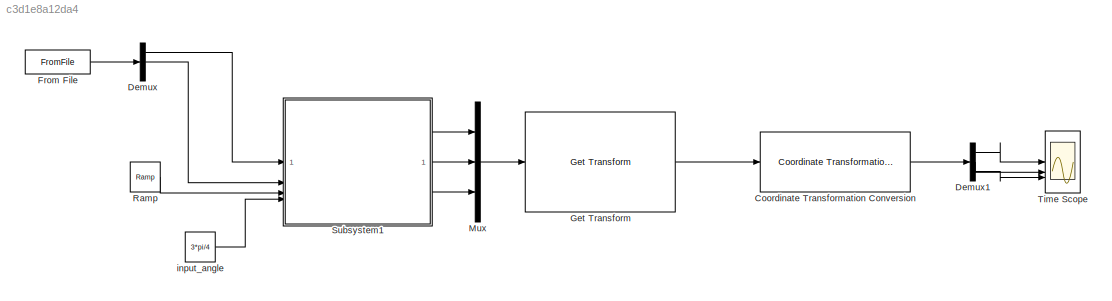
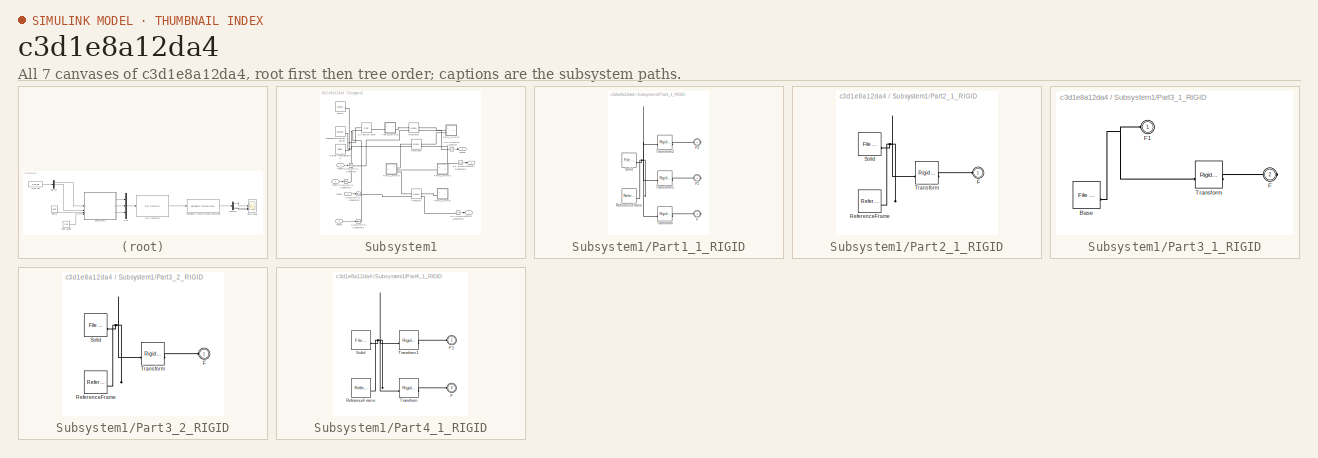
[diagram: thumbnail index - all 7 canvases of the model, root first then tree order]
MODEL slx_c3d1e8a12da4
KIND model
CONFIG AbsTol = auto
CONFIG EnableMultiTasking = off
CONFIG FixedStep = auto
CONFIG MaxStep = auto
CONFIG MinStep = auto
CONFIG RelTol = 1e-3
CONFIG SampleTimeConstraint = Unconstrained
CONFIG SolverName = VariableStepAuto
CONFIG StartTime = 0.0
CONFIG StopTime = 4
WORKSPACE source: external: MATLAB File  (data not in archive)
BLOCK [Reference] Coordinate Transformation Conversion  REF=robotcorelib/Coordinate Transformation Conversion
  LibrarySourceBlock = navlib/Utilities/Coordinate Transformation Conversion
  SourceBlock = robotcorelib/Coordinate Transformation Conversion
  SourceType = robotics.slcore.internal.block.CoordinateTransformationConversion
BLOCK [Demux] Demux
  Outputs = 3
BLOCK [Demux] Demux1
  Outputs = 3
BLOCK [FromFile] From File
  FileName = A.mat
  SampleTime = 0
BLOCK [Reference] Get Transform  REF=robotmaniplib/Get Transform
  SourceBlock = robotmaniplib/Get Transform
  SourceType = Get Transform
BLOCK [Mux] Mux
  DisplayOption = bar
  Inputs = 3
BLOCK [Reference] Ramp  REF=simulink/Sources/Ramp
  SourceBlock = simulink/Sources/Ramp
  SourceType = Ramp
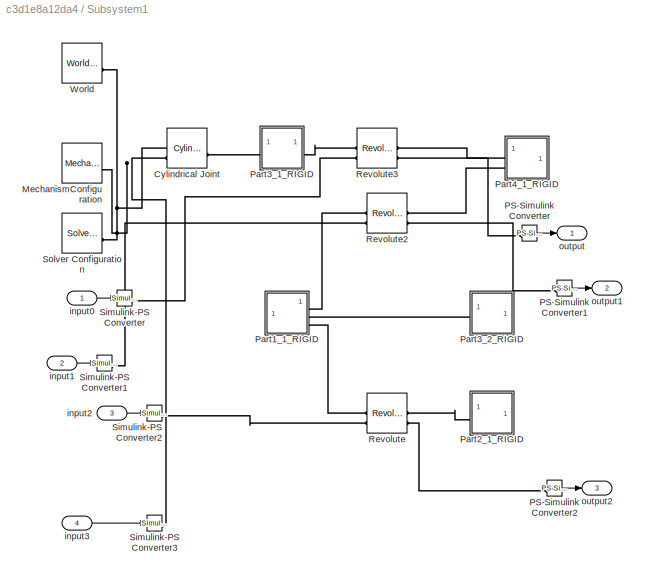
BLOCK [SubSystem] Subsystem1
BLOCK [Reference] Subsystem1/Cylindrical Joint  REF=sm_lib/Joints/Cylindrical
Joint
  SourceBlock = sm_lib/Joints/Cylindrical\nJoint
  SourceType = Cylindrical\nJoint
BLOCK [Reference] Subsystem1/MechanismConfiguration  REF=sm_lib/Utilities/Mechanism
Configuration
  SourceBlock = sm_lib/Utilities/Mechanism\nConfiguration
  SourceType = Mechanism\nConfiguration
BLOCK [Reference] Subsystem1/PS-Simulink Converter  REF=nesl_utility/PS-Simulink
Converter
  SourceBlock = nesl_utility/PS-Simulink\nConverter
  SourceType = PS-Simulink\nConverter
BLOCK [Reference] Subsystem1/PS-Simulink Converter1  REF=nesl_utility/PS-Simulink
Converter
  SourceBlock = nesl_utility/PS-Simulink\nConverter
  SourceType = PS-Simulink\nConverter
BLOCK [Reference] Subsystem1/PS-Simulink Converter2  REF=nesl_utility/PS-Simulink
Converter
  SourceBlock = nesl_utility/PS-Simulink\nConverter
  SourceType = PS-Simulink\nConverter
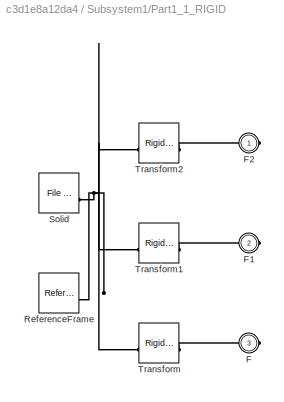
BLOCK [SubSystem] Subsystem1/Part1_1_RIGID
BLOCK [PMIOPort] Subsystem1/Part1_1_RIGID/F
  Port = 3
  Side = Right
BLOCK [PMIOPort] Subsystem1/Part1_1_RIGID/F1
  Port = 2
  Side = Right
BLOCK [PMIOPort] Subsystem1/Part1_1_RIGID/F2
  Side = Right
BLOCK [Reference] Subsystem1/Part1_1_RIGID/ReferenceFrame  REF=sm_lib/Frames and
Transforms/Reference
Frame
  SourceBlock = sm_lib/Frames and\nTransforms/Reference\nFrame
  SourceType = Reference\nFrame
BLOCK [Reference] Subsystem1/Part1_1_RIGID/Solid  REF=sm_lib/Body Elements/File Solid
  SourceBlock = sm_lib/Body Elements/File Solid
  SourceType = File Solid
BLOCK [Reference] Subsystem1/Part1_1_RIGID/Transform  REF=sm_lib/Frames and
Transforms/Rigid
Transform
  SourceBlock = sm_lib/Frames and\nTransforms/Rigid\nTransform
  SourceType = Rigid\nTransform
BLOCK [Reference] Subsystem1/Part1_1_RIGID/Transform1  REF=sm_lib/Frames and
Transforms/Rigid
Transform
  SourceBlock = sm_lib/Frames and\nTransforms/Rigid\nTransform
  SourceType = Rigid\nTransform
BLOCK [Reference] Subsystem1/Part1_1_RIGID/Transform2  REF=sm_lib/Frames and
Transforms/Rigid
Transform
  SourceBlock = sm_lib/Frames and\nTransforms/Rigid\nTransform
  SourceType = Rigid\nTransform
BLOCK [SubSystem] Subsystem1/Part2_1_RIGID
BLOCK [PMIOPort] Subsystem1/Part2_1_RIGID/F
  Side = Left
BLOCK [Reference] Subsystem1/Part2_1_RIGID/ReferenceFrame  REF=sm_lib/Frames and
Transforms/Reference
Frame
  SourceBlock = sm_lib/Frames and\nTransforms/Reference\nFrame
  SourceType = Reference\nFrame
BLOCK [Reference] Subsystem1/Part2_1_RIGID/Solid  REF=sm_lib/Body Elements/File Solid
  SourceBlock = sm_lib/Body Elements/File Solid
  SourceType = File Solid
BLOCK [Reference] Subsystem1/Part2_1_RIGID/Transform  REF=sm_lib/Frames and
Transforms/Rigid
Transform
  SourceBlock = sm_lib/Frames and\nTransforms/Rigid\nTransform
  SourceType = Rigid\nTransform
BLOCK [SubSystem] Subsystem1/Part3_1_RIGID
BLOCK [Reference] Subsystem1/Part3_1_RIGID/Base  REF=sm_lib/Body Elements/File Solid
  SourceBlock = sm_lib/Body Elements/File Solid
  SourceType = File Solid
BLOCK [PMIOPort] Subsystem1/Part3_1_RIGID/F
  Port = 2
  Side = Right
BLOCK [PMIOPort] Subsystem1/Part3_1_RIGID/F1
  Side = Left
BLOCK [Reference] Subsystem1/Part3_1_RIGID/Transform  REF=sm_lib/Frames and
Transforms/Rigid
Transform
  SourceBlock = sm_lib/Frames and\nTransforms/Rigid\nTransform
  SourceType = Rigid\nTransform
BLOCK [SubSystem] Subsystem1/Part3_2_RIGID
BLOCK [PMIOPort] Subsystem1/Part3_2_RIGID/F
  Side = Left
BLOCK [Reference] Subsystem1/Part3_2_RIGID/ReferenceFrame  REF=sm_lib/Frames and
Transforms/Reference
Frame
  SourceBlock = sm_lib/Frames and\nTransforms/Reference\nFrame
  SourceType = Reference\nFrame
BLOCK [Reference] Subsystem1/Part3_2_RIGID/Solid  REF=sm_lib/Body Elements/File Solid
  SourceBlock = sm_lib/Body Elements/File Solid
  SourceType = File Solid
BLOCK [Reference] Subsystem1/Part3_2_RIGID/Transform  REF=sm_lib/Frames and
Transforms/Rigid
Transform
  SourceBlock = sm_lib/Frames and\nTransforms/Rigid\nTransform
  SourceType = Rigid\nTransform
BLOCK [SubSystem] Subsystem1/Part4_1_RIGID
BLOCK [PMIOPort] Subsystem1/Part4_1_RIGID/F
  Port = 2
  Side = Left
BLOCK [PMIOPort] Subsystem1/Part4_1_RIGID/F1
  Side = Left
BLOCK [Reference] Subsystem1/Part4_1_RIGID/ReferenceFrame  REF=sm_lib/Frames and
Transforms/Reference
Frame
  SourceBlock = sm_lib/Frames and\nTransforms/Reference\nFrame
  SourceType = Reference\nFrame
BLOCK [Reference] Subsystem1/Part4_1_RIGID/Solid  REF=sm_lib/Body Elements/File Solid
  SourceBlock = sm_lib/Body Elements/File Solid
  SourceType = File Solid
BLOCK [Reference] Subsystem1/Part4_1_RIGID/Transform  REF=sm_lib/Frames and
Transforms/Rigid
Transform
  SourceBlock = sm_lib/Frames and\nTransforms/Rigid\nTransform
  SourceType = Rigid\nTransform
BLOCK [Reference] Subsystem1/Part4_1_RIGID/Transform1  REF=sm_lib/Frames and
Transforms/Rigid
Transform
  SourceBlock = sm_lib/Frames and\nTransforms/Rigid\nTransform
  SourceType = Rigid\nTransform
BLOCK [Reference] Subsystem1/Revolute  REF=sm_lib/Joints/Revolute Joint
  SourceBlock = sm_lib/Joints/Revolute Joint
  SourceType = Revolute Joint
BLOCK [Reference] Subsystem1/Revolute2  REF=sm_lib/Joints/Revolute Joint
  SourceBlock = sm_lib/Joints/Revolute Joint
  SourceType = Revolute Joint
BLOCK [Reference] Subsystem1/Revolute3  REF=sm_lib/Joints/Revolute Joint
  SourceBlock = sm_lib/Joints/Revolute Joint
  SourceType = Revolute Joint
BLOCK [Reference] Subsystem1/Simulink-PS Converter  REF=nesl_utility/Simulink-PS
Converter
  SourceBlock = nesl_utility/Simulink-PS\nConverter
  SourceType = Simulink-PS\nConverter
BLOCK [Reference] Subsystem1/Simulink-PS Converter1  REF=nesl_utility/Simulink-PS
Converter
  SourceBlock = nesl_utility/Simulink-PS\nConverter
  SourceType = Simulink-PS\nConverter
BLOCK [Reference] Subsystem1/Simulink-PS Converter2  REF=nesl_utility/Simulink-PS
Converter
  SourceBlock = nesl_utility/Simulink-PS\nConverter
  SourceType = Simulink-PS\nConverter
BLOCK [Reference] Subsystem1/Simulink-PS Converter3  REF=nesl_utility/Simulink-PS
Converter
  SourceBlock = nesl_utility/Simulink-PS\nConverter
  SourceType = Simulink-PS\nConverter
BLOCK [Reference] Subsystem1/Solver Configuration  REF=nesl_utility/Solver
Configuration
  SourceBlock = nesl_utility/Solver\nConfiguration
  SourceType = Solver\nConfiguration
BLOCK [Reference] Subsystem1/World  REF=sm_lib/Frames and
Transforms/World Frame
  SourceBlock = sm_lib/Frames and\nTransforms/World Frame
  SourceType = World Frame
BLOCK [Inport] Subsystem1/input0
BLOCK [Inport] Subsystem1/input1
  Port = 2
BLOCK [Inport] Subsystem1/input2
  Port = 3
BLOCK [Inport] Subsystem1/input3
  Port = 4
BLOCK [Outport] Subsystem1/output
BLOCK [Outport] Subsystem1/output1
  Port = 2
BLOCK [Outport] Subsystem1/output2
  Port = 3
BLOCK [Scope] Time Scope
  DefaultConfigurationName = spbscopes.TimeScopeBlockCfg
  Floating = off
  NumInputPorts = 3
  ScopeSpecificationString = spbscopes.TimeScopeBlockCfg('CurrentConfiguration', extmgr.ConfigurationSet(extmgr.Configuration('Core','General UI',true,'FigureColor',[0 0 0]),extmgr.Configuration('Core','Source UI',true),extmgr.Configuration('Sources','WiredSimulink',true),extmgr.Configuration('Visuals','Time Domain',true,'DisplayLayoutDimensions',[3 1],'DisplayPropertyDefaults',struct('YLabelReal','Amplitude','LegendVisibilit...<+2789ch>
  UserDataPersistent = on
BLOCK [Constant] input_angle
  Value = 3*pi/4
LINE Coordinate Transformation Conversion:1 -> Demux1:1
LINE Demux1:1 -> Time Scope:1
LINE Demux1:2 -> Time Scope:2
LINE Demux1:3 -> Time Scope:3
LINE Demux:1 -> Subsystem1:1
LINE Demux:2 -> Subsystem1:2
LINE From File:1 -> Demux:1
LINE Get Transform:1 -> Coordinate Transformation Conversion:1
LINE Mux:1 -> Get Transform:1
LINE Ramp:1 -> Subsystem1:3
LINE Subsystem1/PS-Simulink Converter1:1 -> Subsystem1/output1:1
LINE Subsystem1/PS-Simulink Converter2:1 -> Subsystem1/output2:1
LINE Subsystem1/PS-Simulink Converter:1 -> Subsystem1/output:1
LINE Subsystem1/input0:1 -> Subsystem1/Simulink-PS Converter:1
LINE Subsystem1/input1:1 -> Subsystem1/Simulink-PS Converter1:1
LINE Subsystem1/input2:1 -> Subsystem1/Simulink-PS Converter2:1
LINE Subsystem1/input3:1 -> Subsystem1/Simulink-PS Converter3:1
LINE Subsystem1:1 -> Mux:1
LINE Subsystem1:2 -> Mux:2
LINE Subsystem1:3 -> Mux:3
LINE input_angle:1 -> Subsystem1:4
PNET net1: Subsystem1/Cylindrical Joint:LConn1 -- Subsystem1/MechanismConfiguration:RConn1 -- Subsystem1/Solver Configuration:RConn1 -- Subsystem1/World:RConn1
PLINE Subsystem1/Cylindrical Joint:LConn2 -- Subsystem1/Simulink-PS Converter3:RConn1
PLINE Subsystem1/Cylindrical Joint:RConn1 -- Subsystem1/Part3_1_RIGID:LConn1
PLINE Subsystem1/PS-Simulink Converter1:LConn1 -- Subsystem1/Revolute2:RConn2
PLINE Subsystem1/PS-Simulink Converter2:LConn1 -- Subsystem1/Revolute:RConn2
PLINE Subsystem1/PS-Simulink Converter:LConn1 -- Subsystem1/Revolute3:RConn2
PLINE Subsystem1/Part1_1_RIGID/F1:RConn1 -- Subsystem1/Part1_1_RIGID/Transform1:RConn1
PLINE Subsystem1/Part1_1_RIGID/F2:RConn1 -- Subsystem1/Part1_1_RIGID/Transform2:RConn1
PLINE Subsystem1/Part1_1_RIGID/F:RConn1 -- Subsystem1/Part1_1_RIGID/Transform:RConn1
PNET net2: Subsystem1/Part1_1_RIGID/ReferenceFrame:RConn1 -- Subsystem1/Part1_1_RIGID/Solid:RConn1 -- Subsystem1/Part1_1_RIGID/Transform1:LConn1 -- Subsystem1/Part1_1_RIGID/Transform2:LConn1 -- Subsystem1/Part1_1_RIGID/Transform:LConn1
PLINE Subsystem1/Part1_1_RIGID:RConn1 -- Subsystem1/Revolute2:LConn1
PLINE Subsystem1/Part1_1_RIGID:RConn2 -- Subsystem1/Part3_2_RIGID:LConn1
PLINE Subsystem1/Part1_1_RIGID:RConn3 -- Subsystem1/Revolute:LConn1
PLINE Subsystem1/Part2_1_RIGID/F:RConn1 -- Subsystem1/Part2_1_RIGID/Transform:RConn1
PNET net3: Subsystem1/Part2_1_RIGID/ReferenceFrame:RConn1 -- Subsystem1/Part2_1_RIGID/Solid:RConn1 -- Subsystem1/Part2_1_RIGID/Transform:LConn1
PLINE Subsystem1/Part2_1_RIGID:LConn1 -- Subsystem1/Revolute:RConn1
PNET net4: Subsystem1/Part3_1_RIGID/Base:RConn1 -- Subsystem1/Part3_1_RIGID/F1:RConn1 -- Subsystem1/Part3_1_RIGID/Transform:LConn1
PLINE Subsystem1/Part3_1_RIGID/F:RConn1 -- Subsystem1/Part3_1_RIGID/Transform:RConn1
PLINE Subsystem1/Part3_1_RIGID:RConn1 -- Subsystem1/Revolute3:LConn1
PLINE Subsystem1/Part3_2_RIGID/F:RConn1 -- Subsystem1/Part3_2_RIGID/Transform:RConn1
PNET net5: Subsystem1/Part3_2_RIGID/ReferenceFrame:RConn1 -- Subsystem1/Part3_2_RIGID/Solid:RConn1 -- Subsystem1/Part3_2_RIGID/Transform:LConn1
PLINE Subsystem1/Part4_1_RIGID/F1:RConn1 -- Subsystem1/Part4_1_RIGID/Transform1:RConn1
PLINE Subsystem1/Part4_1_RIGID/F:RConn1 -- Subsystem1/Part4_1_RIGID/Transform:RConn1
PNET net6: Subsystem1/Part4_1_RIGID/ReferenceFrame:RConn1 -- Subsystem1/Part4_1_RIGID/Solid:RConn1 -- Subsystem1/Part4_1_RIGID/Transform1:LConn1 -- Subsystem1/Part4_1_RIGID/Transform:LConn1
PLINE Subsystem1/Part4_1_RIGID:LConn1 -- Subsystem1/Revolute3:RConn1
PLINE Subsystem1/Part4_1_RIGID:LConn2 -- Subsystem1/Revolute2:RConn1
PLINE Subsystem1/Revolute2:LConn2 -- Subsystem1/Simulink-PS Converter1:RConn1
PLINE Subsystem1/Revolute3:LConn2 -- Subsystem1/Simulink-PS Converter:RConn1
PLINE Subsystem1/Revolute:LConn2 -- Subsystem1/Simulink-PS Converter2:RConn1
note: PNET lines group multi-terminal physical nets as a canonical sorted terminal list (undirected conserving connections); 2-terminal nets keep the pairwise PLINE form
